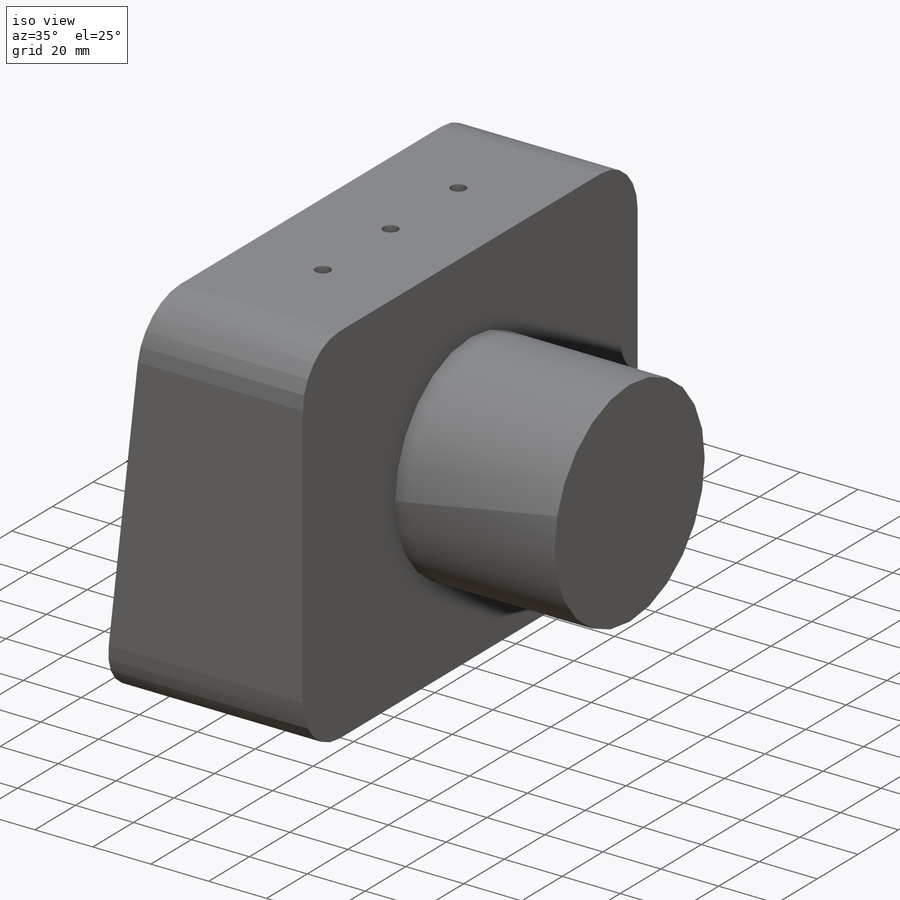
[diagram: iso view]
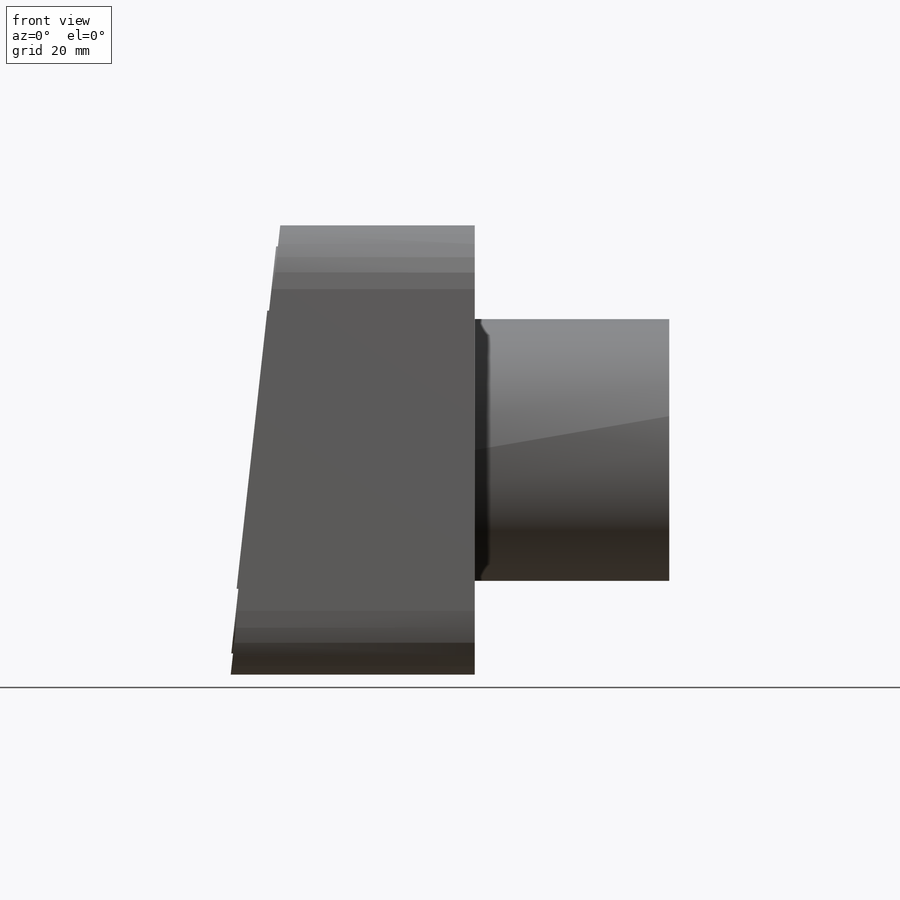
[diagram: front view]
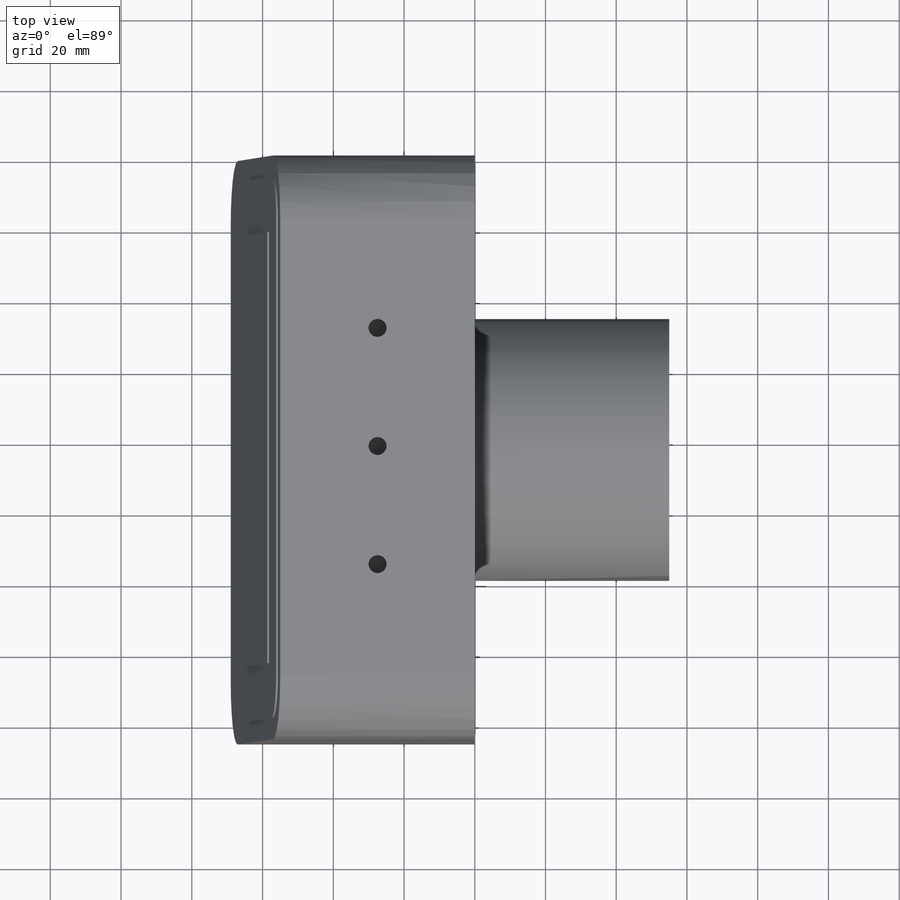
[diagram: top view]
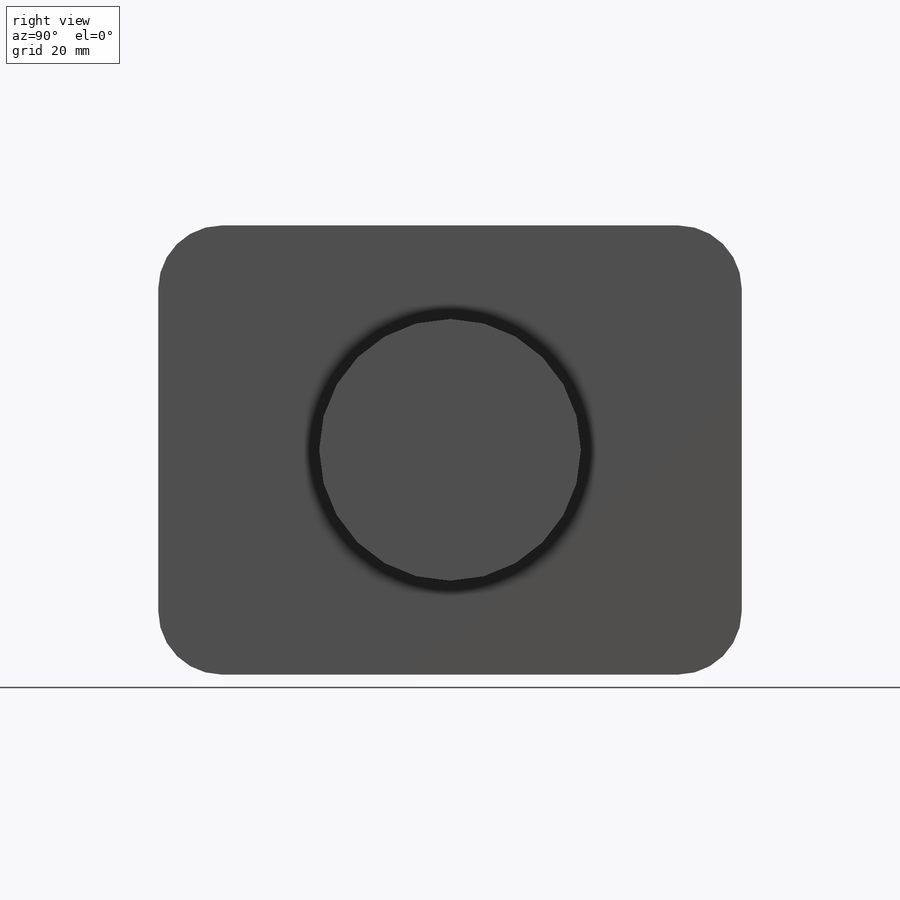
[diagram: right view]
SOLIDWORKS PART (.sldprt)
format: sldprt  version: not decoded by parser v0  size: 404,480 bytes
history: native  units: mm
features: sketch x10, thread x4, plane x3, extrude x3, hole x2, material x1, fillet x1, cut_extrude x1 (+8 scaffold rows collapsed)
feature tree (33):
  scaffold x8  (default folders/planes/origin — collapsed)
  material  "BM"
  plane  "Спереди"
  plane  "Сверху"
  plane  "Справа"
  sketch  "Эскиз1"  dims[D1=127.0mm D2=55.0mm D3=69.0mm]
  extrude  "Бобышка-Вытянуть1"  Depth=165mm
  fillet  "Скругление1"  Radius=18mm
  sketch  "Эскиз2"  dims[D1=~54.838261mm]
  extrude  "Бобышка-Вытянуть2"  Depth=55mm
  sketch  "Эскиз3"  dims[D1=33.4mm D2=33.4mm]
  hole  "Отверстие обработанное метчиком 1/4-201"  [1 undecoded]
  sketch  "Эскиз5"
  sketch  "Эскиз4"  dims[hole-wizard template sketch: 47 standard entries collapsed; hole parameters kept: c15.Глубина сверла=12.0mm c15.D3=~14.816244mm c15.Угол заточки сверла=118.0deg]
  thread  "Отверстие резьбы1"  Diameter=11mm  [1 undecoded]
  thread  "Отверстие резьбы2"  Diameter=11mm  [1 undecoded]
  thread  "Отверстие резьбы3"  Diameter=11mm  [1 undecoded]
  sketch  "Эскиз6"  dims[D1=~101.29346mm]
  hole  "Отверстие обработанное метчиком 1/4-202"  [1 undecoded]
  sketch  "Эскиз8"
  sketch  "Эскиз7"  dims[hole-wizard template sketch: 47 standard entries collapsed; hole parameters kept: c15.Глубина сверла=12.0mm c15.D3=~14.816244mm c15.Угол заточки сверла=118.0deg]
  thread  "Отверстие резьбы4"  Diameter=11mm  [1 undecoded]
  sketch  "Эскиз9"  dims[D1=6.0mm]
  extrude  "Бобышка-Вытянуть3"  Depth=1mm
  sketch  "Эскиз10"  dims[c1.D1=~79.127933mm c1.D2=~121.901649mm c2.D1=~79.127933mm c2.D2=~121.901649mm c3.D2=90.0deg c4.D2=~121.901649mm]
  cut_extrude  "Вырез-Вытянуть1"  Depth=0.5mm
decode coverage: 17 of 21 modeling features carry decoded parameters
note: ~ marks probable driven/reference dimensions
note: 6 parameter values undecoded
note: suppression state not decoded; provenance and decode notes live in map.json
